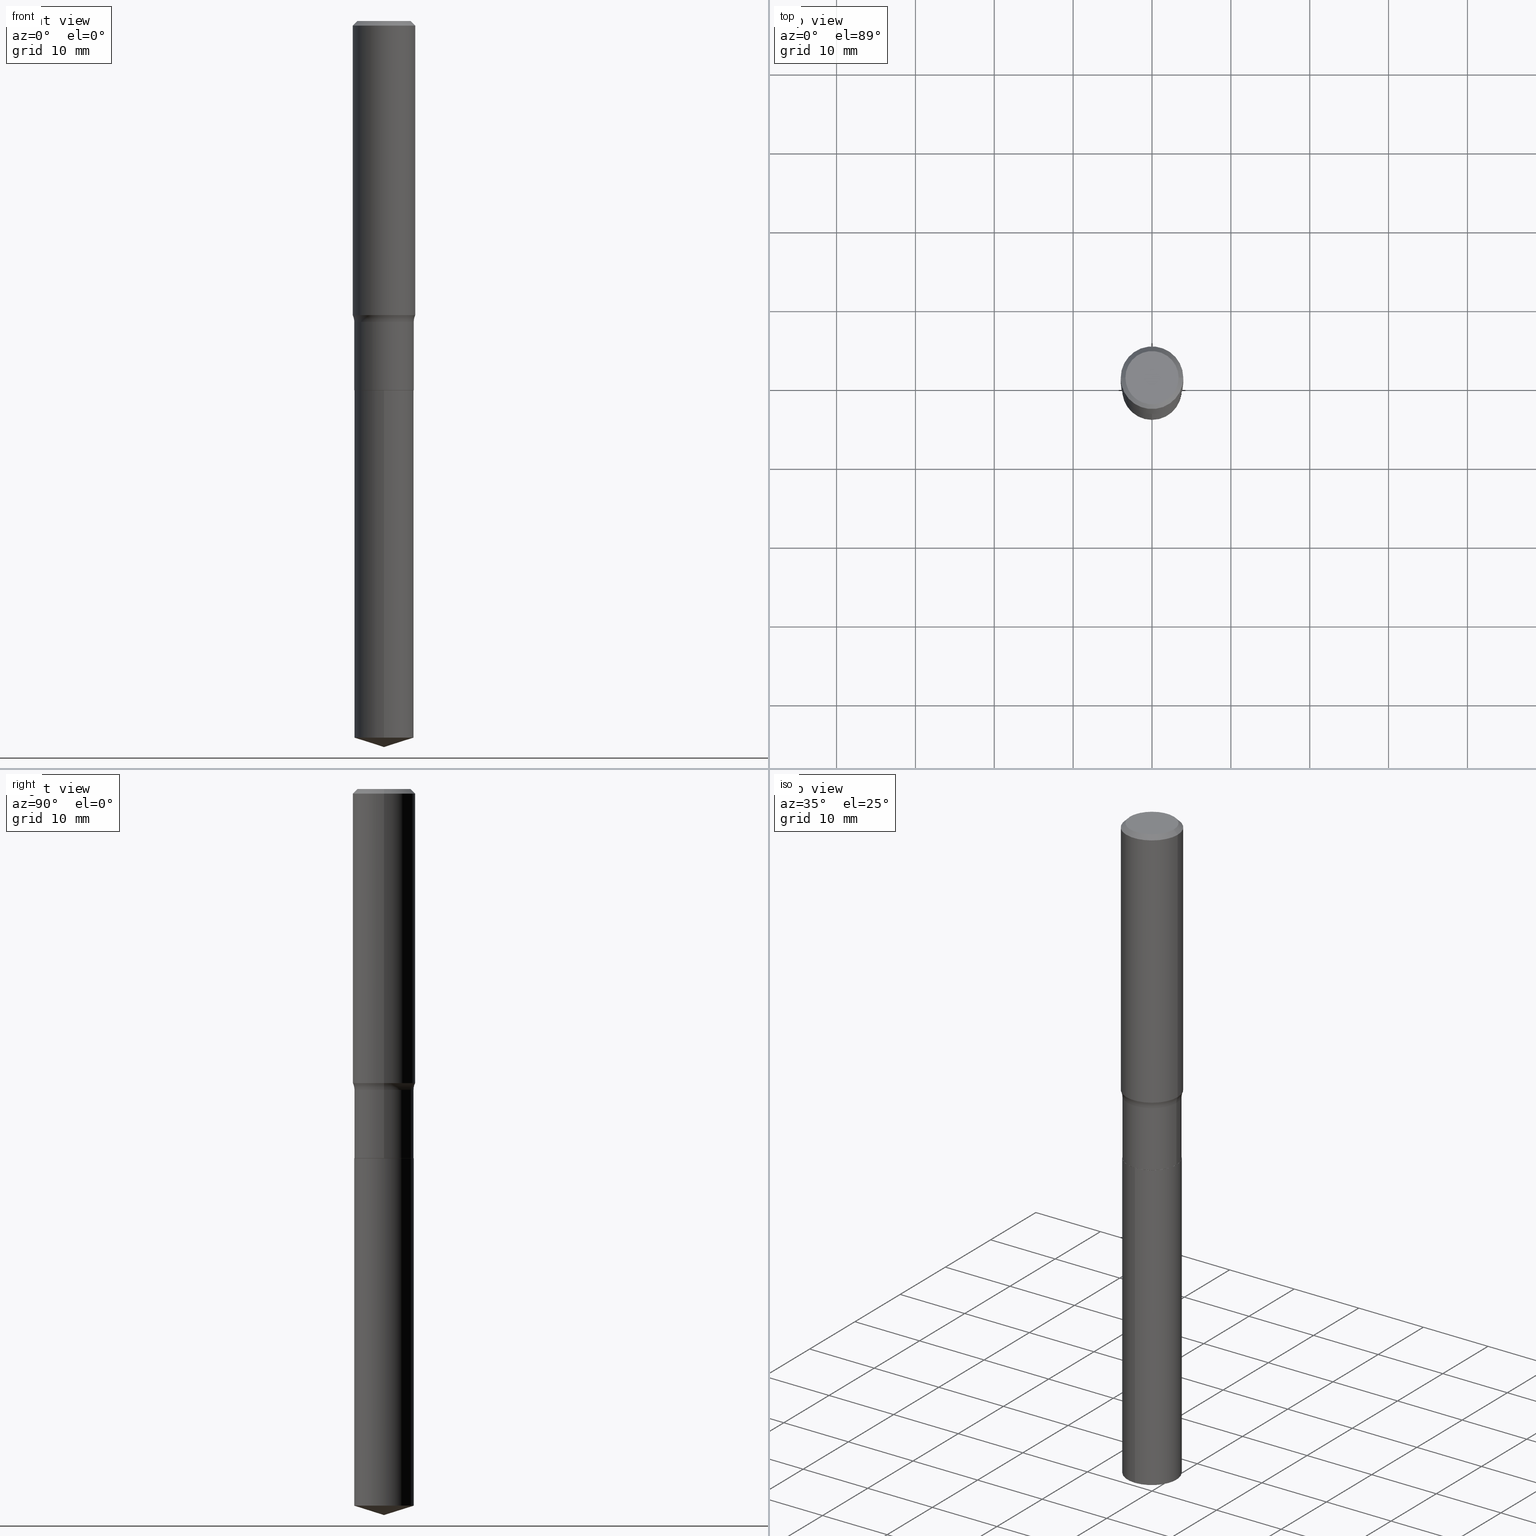
[diagram: canonical four-view strip — front | top / right | iso, engineering-drawing reading convention]
A machine part, canonical four-view strip (front | top / right | iso — engineering-drawing reading convention). The complete STEP part file that produces these views, byte-faithful:
ISO-10303-21;
HEADER;
FILE_DESCRIPTION (( 'STEP AP203' ),
    '1' );
FILE_NAME ('51516.STEP',
    '2024-04-19T12:56:14',
    ( '' ),
    ( '' ),
    'SwSTEP 2.0',
    'SolidWorks 2023',
    '' );
FILE_SCHEMA (( 'CONFIG_CONTROL_DESIGN' ));
ENDSEC;

DATA;
#1 = CARTESIAN_POINT ( 'NONE',  ( 0.1484499999999999431, -6.282222372980468867E-15, -1.502400000000000402 ) ) ;
#2 = ORIENTED_EDGE ( 'NONE', *, *, #483, .T. ) ;
#3 = AXIS2_PLACEMENT_3D ( 'NONE', #272, #83, #237 ) ;
#4 = APPROVAL ( #88, 'UNSPECIFIED' ) ;
#5 = AXIS2_PLACEMENT_3D ( 'NONE', #128, #175, #470 ) ;
#6 = LINE ( 'NONE', #428, #115 ) ;
#7 = ORIENTED_EDGE ( 'NONE', *, *, #492, .T. ) ;
#8 = FACE_OUTER_BOUND ( 'NONE', #254, .T. ) ;
#9 = EDGE_LOOP ( 'NONE', ( #488, #383, #31, #230 ) ) ;
#10 = PRODUCT_DEFINITION ( 'UNKNOWN', '', #342, #165 ) ;
#11 = ORIENTED_EDGE ( 'NONE', *, *, #37, .T. ) ;
#12 = CONICAL_SURFACE ( 'NONE', #291, 0.1479499999999999982, 0.7853981633975507526 ) ;
#13 = COORDINATED_UNIVERSAL_TIME_OFFSET ( 5, 0, .BEHIND. ) ;
#14 = CC_DESIGN_APPROVAL ( #119, ( #360 ) ) ;
#15 = DIRECTION ( 'NONE',  ( 1.000000000000000000, -6.982962677686266711E-15, 4.883557194083113462E-29 ) ) ;
#16 = PERSON_AND_ORGANIZATION ( #423, #197 ) ;
#17 = CARTESIAN_POINT ( 'NONE',  ( 5.731567514496448931E-31, -8.183159387913672688E-17, -0.02343750000000014225 ) ) ;
#18 = COORDINATED_UNIVERSAL_TIME_OFFSET ( 5, 0, .BEHIND. ) ;
#19 = EDGE_CURVE ( 'NONE', #152, #448, #75, .T. ) ;
#20 = AXIS2_PLACEMENT_3D ( 'NONE', #145, #449, #264 ) ;
#21 = CARTESIAN_POINT ( 'NONE',  ( -0.1479499999999999982, -5.386345315001924531E-15, -1.843800000000000106 ) ) ;
#22 = DIRECTION ( 'NONE',  ( -2.445468806185136597E-29, 3.491481338843145583E-15, 1.000000000000000000 ) ) ;
#23 = CYLINDRICAL_SURFACE ( 'NONE', #341, 0.1484499999999999986 ) ;
#24 = EDGE_CURVE ( 'NONE', #200, #450, #331, .T. ) ;
#25 = LINE ( 'NONE', #102, #387 ) ;
#26 = AXIS2_PLACEMENT_3D ( 'NONE', #335, #298, #221 ) ;
#27 = ORIENTED_EDGE ( 'NONE', *, *, #320, .T. ) ;
#28 = FACE_OUTER_BOUND ( 'NONE', #149, .T. ) ;
#29 = ORIENTED_EDGE ( 'NONE', *, *, #24, .T. ) ;
#30 = DIRECTION ( 'NONE',  ( -1.000000000000000000, 6.982962677686266711E-15, 0.000000000000000000 ) ) ;
#31 = ORIENTED_EDGE ( 'NONE', *, *, #308, .F. ) ;
#32 = EDGE_CURVE ( 'NONE', #39, #101, #420, .T. ) ;
#33 = CARTESIAN_POINT ( 'NONE',  ( -0.1562500000000000000, 1.009256324509342545E-15, -0.02343750000000014225 ) ) ;
#34 = AXIS2_PLACEMENT_3D ( 'NONE', #302, #182, #444 ) ;
#35 = ORIENTED_EDGE ( 'NONE', *, *, #105, .T. ) ;
#36 = ORIENTED_EDGE ( 'NONE', *, *, #371, .T. ) ;
#37 = EDGE_CURVE ( 'NONE', #110, #336, #281, .T. ) ;
#38 = PERSON_AND_ORGANIZATION ( #423, #197 ) ;
#39 = VERTEX_POINT ( 'NONE', #389 ) ;
#40 = LOCAL_TIME ( 8, 56, 14.00000000000000000, #18 ) ;
#41 = DIRECTION ( 'NONE',  ( 1.000000000000000000, -6.982962677686268288E-15, 0.000000000000000000 ) ) ;
#42 = FACE_OUTER_BOUND ( 'NONE', #223, .T. ) ;
#43 =( CONVERSION_BASED_UNIT ( 'INCH', #306 ) LENGTH_UNIT ( ) NAMED_UNIT ( #48 ) );
#44 = DIRECTION ( 'NONE',  ( 2.438088387897960049E-29, -3.491481338843145188E-15, -1.000000000000000000 ) ) ;
#45 = ADVANCED_FACE ( 'NONE', ( #42 ), #164, .F. ) ;
#46 = EDGE_LOOP ( 'NONE', ( #430, #7, #146, #348 ) ) ;
#47 = CLOSED_SHELL ( 'NONE', ( #258, #363, #190, #386, #224 ) ) ;
#48 = DIMENSIONAL_EXPONENTS ( 1.000000000000000000, 0.000000000000000000, 0.000000000000000000, 0.000000000000000000, 0.000000000000000000, 0.000000000000000000, 0.000000000000000000 ) ;
#49 = APPROVAL_ROLE ( '' ) ;
#50 = DIRECTION ( 'NONE',  ( 2.445681550450447072E-29, -3.491176676946568981E-15, -1.000000000000000000 ) ) ;
#51 = CARTESIAN_POINT ( 'NONE',  ( -0.1562500000000000833, 1.110223024625157132E-15, -7.685836078523293962E-30 ) ) ;
#52 = CC_DESIGN_DATE_AND_TIME_ASSIGNMENT ( #321, #477, ( #360 ) ) ;
#53 = PERSON_AND_ORGANIZATION_ROLE ( 'classification_officer' ) ;
#54 = DIRECTION ( 'NONE',  ( 1.000000000000000000, -6.982962677686268288E-15, 0.000000000000000000 ) ) ;
#55 = DATE_AND_TIME ( #440, #246 ) ;
#56 = AXIS2_PLACEMENT_3D ( 'NONE', #240, #314, #457 ) ;
#57 = VECTOR ( 'NONE', #229, 39.37007874015748143 ) ;
#58 = LINE ( 'NONE', #362, #124 ) ;
#59 = CIRCLE ( 'NONE', #166, 0.1328125000000000000 ) ;
#60 = APPROVAL ( #364, 'UNSPECIFIED' ) ;
#61 = CARTESIAN_POINT ( 'NONE',  ( 4.508955384844155553E-29, -6.437593292558992940E-15, -1.843800000000000106 ) ) ;
#62 = CARTESIAN_POINT ( 'NONE',  ( 1.054800691235956477E-15, 0.1484499999999935593, -1.843800000000000772 ) ) ;
#63 = VERTEX_POINT ( 'NONE', #317 ) ;
#64 = AXIS2_PLACEMENT_3D ( 'NONE', #199, #44, #357 ) ;
#65 = CARTESIAN_POINT ( 'NONE',  ( 0.000000000000000000, 0.000000000000000000, 0.000000000000000000 ) ) ;
#66 = CIRCLE ( 'NONE', #334, 0.1484499999999999986 ) ;
#67 = ORIENTED_EDGE ( 'NONE', *, *, #130, .F. ) ;
#68 = CYLINDRICAL_SURFACE ( 'NONE', #140, 0.1562500000000000833 ) ;
#69 = EDGE_LOOP ( 'NONE', ( #154, #417, #340, #158 ) ) ;
#70 = EDGE_CURVE ( 'NONE', #162, #222, #349, .T. ) ;
#71 = CARTESIAN_POINT ( 'NONE',  ( 4.508955384844155553E-29, -6.437593292558992940E-15, -1.843800000000000106 ) ) ;
#72 = APPLICATION_CONTEXT ( 'configuration controlled 3d designs of mechanical parts and assemblies' ) ;
#73 = VERTEX_POINT ( 'NONE', #201 ) ;
#74 = DIRECTION ( 'NONE',  ( -2.445681550450447352E-29, 3.491176676946568981E-15, 1.000000000000000000 ) ) ;
#75 = CIRCLE ( 'NONE', #56, 0.07800000000000002764 ) ;
#76 = ORIENTED_EDGE ( 'NONE', *, *, #112, .F. ) ;
#77 = CIRCLE ( 'NONE', #482, 0.1484499999999999986 ) ;
#78 = DIRECTION ( 'NONE',  ( 1.000000000000000000, -6.982962677686268288E-15, 4.876286914311434227E-29 ) ) ;
#79 = EDGE_LOOP ( 'NONE', ( #11, #114, #422, #299 ) ) ;
#80 = APPLICATION_CONTEXT ( 'configuration controlled 3d designs of mechanical parts and assemblies' ) ;
#81 = ORIENTED_EDGE ( 'NONE', *, *, #308, .T. ) ;
#82 = DIRECTION ( 'NONE',  ( -2.445681550450447632E-29, 3.491176676946568981E-15, 1.000000000000000000 ) ) ;
#83 = DIRECTION ( 'NONE',  ( -2.445468806185136597E-29, 3.491481338843145583E-15, 1.000000000000000000 ) ) ;
#84 = AXIS2_PLACEMENT_3D ( 'NONE', #345, #356, #191 ) ;
#85 = VERTEX_POINT ( 'NONE', #1 ) ;
#86 = EDGE_CURVE ( 'NONE', #256, #101, #365, .T. ) ;
#87 = DIRECTION ( 'NONE',  ( 0.7071067811865453523, -7.319954787623248157E-15, -0.7071067811865496822 ) ) ;
#88 = APPROVAL_STATUS ( 'not_yet_approved' ) ;
#89 = FACE_OUTER_BOUND ( 'NONE', #228, .T. ) ;
#90 = VECTOR ( 'NONE', #116, 39.37007874015748143 ) ;
#91 = PERSON_AND_ORGANIZATION_ROLE ( 'creator' ) ;
#92 = CC_DESIGN_DATE_AND_TIME_ASSIGNMENT ( #137, #129, ( #10 ) ) ;
#93 = CARTESIAN_POINT ( 'NONE',  ( 4.508955384844155553E-29, -6.437593292558992940E-15, -1.843800000000000106 ) ) ;
#94 = CALENDAR_DATE ( 2024, 19, 4 ) ;
#95 = FACE_OUTER_BOUND ( 'NONE', #106, .T. ) ;
#96 = DIRECTION ( 'NONE',  ( -2.445468806185136877E-29, 3.491481338843145188E-15, 1.000000000000000000 ) ) ;
#97 = CIRCLE ( 'NONE', #226, 0.1484499999999999431 ) ;
#98 = CARTESIAN_POINT ( 'NONE',  ( -8.742147185207805018E-28, 1.247918234776515396E-13, 35.74507874015748143 ) ) ;
#99 = CC_DESIGN_APPROVAL ( #4, ( #342 ) ) ;
#100 = DIRECTION ( 'NONE',  ( 1.000000000000000000, -6.982962677686266711E-15, 4.883557194083113462E-29 ) ) ;
#101 = VERTEX_POINT ( 'NONE', #437 ) ;
#102 = CARTESIAN_POINT ( 'NONE',  ( -1.036620809502480931E-15, -0.1484500000000064379, -1.843799999999999661 ) ) ;
#103 = CARTESIAN_POINT ( 'NONE',  ( 4.508955384844155553E-29, -6.437593292558992940E-15, -1.843800000000000106 ) ) ;
#104 = AXIS2_PLACEMENT_3D ( 'NONE', #260, #107, #411 ) ;
#105 = EDGE_CURVE ( 'NONE', #101, #217, #473, .T. ) ;
#106 = EDGE_LOOP ( 'NONE', ( #332, #432, #35, #126 ) ) ;
#107 = DIRECTION ( 'NONE',  ( -2.445468806185136597E-29, 3.491481338843145583E-15, 1.000000000000000000 ) ) ;
#108 = EDGE_LOOP ( 'NONE', ( #313, #185, #195, #76 ) ) ;
#109 = FACE_OUTER_BOUND ( 'NONE', #232, .T. ) ;
#110 = VERTEX_POINT ( 'NONE', #367 ) ;
#111 = CC_DESIGN_PERSON_AND_ORGANIZATION_ASSIGNMENT ( #173, #438, ( #342 ) ) ;
#112 = EDGE_CURVE ( 'NONE', #352, #63, #300, .T. ) ;
#113 = AXIS2_PLACEMENT_3D ( 'NONE', #425, #463, #355 ) ;
#114 = ORIENTED_EDGE ( 'NONE', *, *, #161, .T. ) ;
#115 = VECTOR ( 'NONE', #82, 39.37007874015748143 ) ;
#116 = DIRECTION ( 'NONE',  ( 0.7071067811866199593, -2.468850131083015945E-15, 0.7071067811864750752 ) ) ;
#117 = ORIENTED_EDGE ( 'NONE', *, *, #123, .T. ) ;
#118 = DIRECTION ( 'NONE',  ( 1.000000000000000000, -6.982962677686266711E-15, 4.876176775795935232E-29 ) ) ;
#119 = APPROVAL ( #433, 'UNSPECIFIED' ) ;
#120 = CARTESIAN_POINT ( 'NONE',  ( 0.1562500000000000000, -1.153784406030938435E-15, -0.02343750000000014225 ) ) ;
#121 = DIRECTION ( 'NONE',  ( 1.000000000000000000, -6.982962677686268288E-15, 0.000000000000000000 ) ) ;
#122 = ORIENTED_EDGE ( 'NONE', *, *, #390, .T. ) ;
#123 = EDGE_CURVE ( 'NONE', #152, #217, #170, .T. ) ;
#124 = VECTOR ( 'NONE', #248, 39.37007874015748143 ) ;
#125 = DIRECTION ( 'NONE',  ( -2.445468806185136597E-29, 3.491481338843145583E-15, 1.000000000000000000 ) ) ;
#126 = ORIENTED_EDGE ( 'NONE', *, *, #371, .F. ) ;
#127 = SHAPE_DEFINITION_REPRESENTATION ( #379, #399 ) ;
#128 = CARTESIAN_POINT ( 'NONE',  ( 4.508955384844155553E-29, -6.437593292558992940E-15, -1.843800000000000106 ) ) ;
#129 = DATE_TIME_ROLE ( 'creation_date' ) ;
#130 = EDGE_CURVE ( 'NONE', #415, #162, #58, .T. ) ;
#131 = FACE_OUTER_BOUND ( 'NONE', #276, .T. ) ;
#132 = AXIS2_PLACEMENT_3D ( 'NONE', #253, #372, #370 ) ;
#133 = PERSON_AND_ORGANIZATION ( #423, #197 ) ;
#134 = DIRECTION ( 'NONE',  ( 6.982962677686265922E-15, 1.000000000000000000, -3.491176676946568981E-15 ) ) ;
#135 = APPROVAL_ROLE ( '' ) ;
#136 = DIRECTION ( 'NONE',  ( -2.445468806185136597E-29, 3.491481338843145583E-15, 1.000000000000000000 ) ) ;
#137 = DATE_AND_TIME ( #284, #40 ) ;
#138 = DIRECTION ( 'NONE',  ( -6.982962677686265133E-15, -1.000000000000000000, 3.680495781292372402E-15 ) ) ;
#139 = ADVANCED_FACE ( 'NONE', ( #169 ), #368, .F. ) ;
#140 = AXIS2_PLACEMENT_3D ( 'NONE', #65, #180, #304 ) ;
#141 = AXIS2_PLACEMENT_3D ( 'NONE', #475, #472, #15 ) ;
#142 = CARTESIAN_POINT ( 'NONE',  ( -0.1484499999999999709, 1.054800691235868519E-15, -7.302159141483407353E-30 ) ) ;
#143 = LOCAL_TIME ( 8, 56, 14.00000000000000000, #394 ) ;
#144 = ORIENTED_EDGE ( 'NONE', *, *, #130, .T. ) ;
#145 = CARTESIAN_POINT ( 'NONE',  ( 4.508955384844155553E-29, -6.437593292558992940E-15, -1.843800000000000106 ) ) ;
#146 = ORIENTED_EDGE ( 'NONE', *, *, #86, .T. ) ;
#147 = EDGE_CURVE ( 'NONE', #256, #152, #151, .T. ) ;
#148 = FACE_OUTER_BOUND ( 'NONE', #9, .T. ) ;
#149 = EDGE_LOOP ( 'NONE', ( #262, #122, #376, #218 ) ) ;
#150 = FACE_OUTER_BOUND ( 'NONE', #385, .T. ) ;
#151 = CIRCLE ( 'NONE', #251, 0.1562500000000001665 ) ;
#152 = VERTEX_POINT ( 'NONE', #288 ) ;
#153 = CARTESIAN_POINT ( 'NONE',  ( 0.1562500000000001665, -6.217981170176073659E-15, -1.468400588240382554 ) ) ;
#154 = ORIENTED_EDGE ( 'NONE', *, *, #19, .F. ) ;
#155 = CARTESIAN_POINT ( 'NONE',  ( -7.955031918821654702E-47, 1.135767727816384474E-32, 3.252968060235159383E-18 ) ) ;
#156 = ORIENTED_EDGE ( 'NONE', *, *, #320, .F. ) ;
#157 = CARTESIAN_POINT ( 'NONE',  ( 5.731567514496448931E-31, -8.183159387913672688E-17, -0.02343750000000014225 ) ) ;
#158 = ORIENTED_EDGE ( 'NONE', *, *, #346, .T. ) ;
#159 = APPLICATION_PROTOCOL_DEFINITION ( 'international standard', 'config_control_design', 1994, #80 ) ;
#160 = ORIENTED_EDGE ( 'NONE', *, *, #32, .F. ) ;
#161 = EDGE_CURVE ( 'NONE', #336, #200, #289, .T. ) ;
#162 = VERTEX_POINT ( 'NONE', #369 ) ;
#163 = DIRECTION ( 'NONE',  ( -2.445468806185136597E-29, 3.491481338843145583E-15, 1.000000000000000000 ) ) ;
#164 = PLANE ( 'NONE',  #64 ) ;
#165 = DESIGN_CONTEXT ( 'detailed design', #80, 'design' ) ;
#166 = AXIS2_PLACEMENT_3D ( 'NONE', #155, #125, #78 ) ;
#167 = DIRECTION ( 'NONE',  ( -2.445681550450447352E-29, 3.491176676946568981E-15, 1.000000000000000000 ) ) ;
#168 = EDGE_CURVE ( 'NONE', #448, #85, #97, .T. ) ;
#169 = FACE_OUTER_BOUND ( 'NONE', #69, .T. ) ;
#170 = LINE ( 'NONE', #51, #202 ) ;
#171 = AXIS2_PLACEMENT_3D ( 'NONE', #413, #330, #220 ) ;
#172 = CC_DESIGN_PERSON_AND_ORGANIZATION_ASSIGNMENT ( #471, #91, ( #10 ) ) ;
#173 = PERSON_AND_ORGANIZATION ( #423, #197 ) ;
#174 = DIRECTION ( 'NONE',  ( -2.445468806185136597E-29, 3.491481338843145583E-15, 1.000000000000000000 ) ) ;
#175 = DIRECTION ( 'NONE',  ( -2.438088387897960049E-29, 3.491481338843145188E-15, 1.000000000000000000 ) ) ;
#176 = EDGE_CURVE ( 'NONE', #73, #39, #350, .T. ) ;
#177 = DIRECTION ( 'NONE',  ( -6.982962677686265133E-15, -1.000000000000000000, 3.680495781292372402E-15 ) ) ;
#178 = CIRCLE ( 'NONE', #458, 0.1484499999999999431 ) ;
#179 = APPROVAL_PERSON_ORGANIZATION ( #133, #4, #49 ) ;
#180 = DIRECTION ( 'NONE',  ( -2.445468806185136597E-29, 3.491481338843145583E-15, 1.000000000000000000 ) ) ;
#181 = EDGE_LOOP ( 'NONE', ( #274, #27, #460, #464 ) ) ;
#182 = DIRECTION ( 'NONE',  ( -2.445468806185136597E-29, 3.491481338843145583E-15, 1.000000000000000000 ) ) ;
#183 = ORIENTED_EDGE ( 'NONE', *, *, #338, .F. ) ;
#184 = CYLINDRICAL_SURFACE ( 'NONE', #132, 0.1484499999999999986 ) ;
#185 = ORIENTED_EDGE ( 'NONE', *, *, #469, .T. ) ;
#186 = CC_DESIGN_PERSON_AND_ORGANIZATION_ASSIGNMENT ( #208, #53, ( #360 ) ) ;
#187 = DIRECTION ( 'NONE',  ( -2.445468806185136597E-29, 3.491481338843145583E-15, 1.000000000000000000 ) ) ;
#188 = VECTOR ( 'NONE', #278, 39.37007874015748143 ) ;
#189 = LOCAL_TIME ( 8, 56, 14.00000000000000000, #13 ) ;
#190 = ADVANCED_FACE ( 'NONE', ( #131 ), #474, .T. ) ;
#191 = DIRECTION ( 'NONE',  ( 1.000000000000000000, 0.000000000000000000, 0.000000000000000000 ) ) ;
#192 = ORIENTED_EDGE ( 'NONE', *, *, #37, .F. ) ;
#193 = PERSON_AND_ORGANIZATION_ROLE ( 'design_owner' ) ;
#194 = VECTOR ( 'NONE', #206, 39.37007874015748143 ) ;
#195 = ORIENTED_EDGE ( 'NONE', *, *, #277, .T. ) ;
#196 = AXIS2_PLACEMENT_3D ( 'NONE', #478, #136, #441 ) ;
#197 = ORGANIZATION ( 'UNSPECIFIED', 'UNSPECIFIED', '' ) ;
#198 = ADVANCED_FACE ( 'NONE', ( #209 ), #324, .F. ) ;
#199 = CARTESIAN_POINT ( 'NONE',  ( -3.977515959410827351E-47, 5.678838639081922371E-33, 1.626484030117579692E-18 ) ) ;
#200 = VERTEX_POINT ( 'NONE', #329 ) ;
#201 = CARTESIAN_POINT ( 'NONE',  ( -0.1328125000000000000, 9.683405275697749214E-16, 3.252968060228530332E-18 ) ) ;
#202 = VECTOR ( 'NONE', #96, 39.37007874015748143 ) ;
#203 =( GEOMETRIC_REPRESENTATION_CONTEXT ( 3 ) GLOBAL_UNCERTAINTY_ASSIGNED_CONTEXT ( ( #261 ) ) GLOBAL_UNIT_ASSIGNED_CONTEXT ( ( #43, #354, #421 ) ) REPRESENTATION_CONTEXT ( 'NONE', 'WORKASPACE' ) );
#204 = DATE_AND_TIME ( #94, #143 ) ;
#205 = DIRECTION ( 'NONE',  ( -2.445468806185136597E-29, 3.491481338843145583E-15, 1.000000000000000000 ) ) ;
#206 = DIRECTION ( 'NONE',  ( -2.445468806185136877E-29, 3.491481338843145188E-15, 1.000000000000000000 ) ) ;
#207 = CC_DESIGN_PERSON_AND_ORGANIZATION_ASSIGNMENT ( #326, #392, ( #342 ) ) ;
#208 = PERSON_AND_ORGANIZATION ( #423, #197 ) ;
#209 = FACE_OUTER_BOUND ( 'NONE', #267, .T. ) ;
#210 = AXIS2_PLACEMENT_3D ( 'NONE', #416, #339, #100 ) ;
#211 = CIRCLE ( 'NONE', #310, 0.1562500000000000000 ) ;
#212 = APPROVAL_DATE_TIME ( #55, #4 ) ;
#213 = EDGE_CURVE ( 'NONE', #450, #85, #480, .T. ) ;
#214 = DIRECTION ( 'NONE',  ( 1.000000000000000000, -6.982962677686264344E-15, 0.000000000000000000 ) ) ;
#215 = CYLINDRICAL_SURFACE ( 'NONE', #34, 0.1484499999999999709 ) ;
#216 = LINE ( 'NONE', #33, #238 ) ;
#217 = VERTEX_POINT ( 'NONE', #252 ) ;
#218 = ORIENTED_EDGE ( 'NONE', *, *, #213, .F. ) ;
#219 = AXIS2_PLACEMENT_3D ( 'NONE', #456, #239, #118 ) ;
#220 = DIRECTION ( 'NONE',  ( -6.982962677686265133E-15, -1.000000000000000000, 3.680495781292372402E-15 ) ) ;
#221 = DIRECTION ( 'NONE',  ( -6.982962677686265922E-15, -1.000000000000000000, 3.500519750498734014E-15 ) ) ;
#222 = VERTEX_POINT ( 'NONE', #434 ) ;
#223 = EDGE_LOOP ( 'NONE', ( #265, #407 ) ) ;
#224 = ADVANCED_FACE ( 'NONE', ( #89 ), #398, .F. ) ;
#225 = CARTESIAN_POINT ( 'NONE',  ( 3.590927833525760442E-29, -5.126893251787593696E-15, -1.468400588240382554 ) ) ;
#226 = AXIS2_PLACEMENT_3D ( 'NONE', #442, #174, #214 ) ;
#227 = CC_DESIGN_APPROVAL ( #60, ( #10 ) ) ;
#228 = EDGE_LOOP ( 'NONE', ( #81, #410 ) ) ;
#229 = DIRECTION ( 'NONE',  ( -2.445468806185136877E-29, 3.491481338843145188E-15, 1.000000000000000000 ) ) ;
#230 = ORIENTED_EDGE ( 'NONE', *, *, #277, .F. ) ;
#231 = CARTESIAN_POINT ( 'NONE',  ( 8.865595620382872947E-29, -1.265551545393131300E-14, -3.625000000000000444 ) ) ;
#232 = EDGE_LOOP ( 'NONE', ( #270, #117, #315, #414 ) ) ;
#233 = ADVANCED_FACE ( 'NONE', ( #405 ), #12, .T. ) ;
#234 = EDGE_CURVE ( 'NONE', #450, #200, #77, .T. ) ;
#235 = CYLINDRICAL_SURFACE ( 'NONE', #219, 0.1562500000000000833 ) ;
#236 = AXIS2_PLACEMENT_3D ( 'NONE', #17, #402, #403 ) ;
#237 = DIRECTION ( 'NONE',  ( 1.000000000000000000, -6.982962677686265133E-15, 0.000000000000000000 ) ) ;
#238 = VECTOR ( 'NONE', #491, 39.37007874015748143 ) ;
#239 = DIRECTION ( 'NONE',  ( -2.445468806185136597E-29, 3.491481338843145583E-15, 1.000000000000000000 ) ) ;
#240 = CARTESIAN_POINT ( 'NONE',  ( -0.2264499999999999569, -3.636577538349196604E-15, -1.502400000000000402 ) ) ;
#241 = CALENDAR_DATE ( 2024, 19, 4 ) ;
#242 = DIRECTION ( 'NONE',  ( -6.982962677686265133E-15, -1.000000000000000000, 3.680495781292372402E-15 ) ) ;
#243 = COORDINATED_UNIVERSAL_TIME_OFFSET ( 5, 0, .BEHIND. ) ;
#244 = CARTESIAN_POINT ( 'NONE',  ( 3.590927833525760442E-29, -5.126893251787593696E-15, -1.468400588240382554 ) ) ;
#245 = CONICAL_SURFACE ( 'NONE', #26, 124.8659371009140102, 1.265363707695889239 ) ;
#246 = LOCAL_TIME ( 8, 56, 14.00000000000000000, #243 ) ;
#247 = CARTESIAN_POINT ( 'NONE',  ( 4.507732650441062752E-29, -6.435847551889571436E-15, -1.843300000000000161 ) ) ;
#248 = DIRECTION ( 'NONE',  ( -6.659769872151627355E-15, -0.9537169507482260444, 0.3007057995042761722 ) ) ;
#249 = ADVANCED_FACE ( 'NONE', ( #95 ), #318, .T. ) ;
#250 = DIRECTION ( 'NONE',  ( -6.982962677686265922E-15, -1.000000000000000000, 3.500519750498734014E-15 ) ) ;
#251 = AXIS2_PLACEMENT_3D ( 'NONE', #244, #22, #54 ) ;
#252 = CARTESIAN_POINT ( 'NONE',  ( -0.1562500000000000000, -1.494139398208207734E-15, -0.02343750000000014225 ) ) ;
#253 = CARTESIAN_POINT ( 'NONE',  ( 4.508955384844155553E-29, -6.437593292558992940E-15, -1.843800000000000106 ) ) ;
#254 = EDGE_LOOP ( 'NONE', ( #160, #259, #36, #2 ) ) ;
#255 = DIRECTION ( 'NONE',  ( 1.000000000000000000, -6.982962677686264344E-15, 0.000000000000000000 ) ) ;
#256 = VERTEX_POINT ( 'NONE', #153 ) ;
#257 = CYLINDRICAL_SURFACE ( 'NONE', #104, 0.1484499999999999709 ) ;
#258 = ADVANCED_FACE ( 'NONE', ( #148 ), #184, .T. ) ;
#259 = ORIENTED_EDGE ( 'NONE', *, *, #176, .F. ) ;
#260 = CARTESIAN_POINT ( 'NONE',  ( 0.000000000000000000, 0.000000000000000000, 0.000000000000000000 ) ) ;
#261 = UNCERTAINTY_MEASURE_WITH_UNIT (LENGTH_MEASURE( 1.000000000000000082E-05 ), #43, 'distance_accuracy_value', 'NONE');
#262 = ORIENTED_EDGE ( 'NONE', *, *, #234, .T. ) ;
#263 = ADVANCED_FACE ( 'NONE', ( #452 ), #325, .F. ) ;
#264 = DIRECTION ( 'NONE',  ( 1.000000000000000000, -6.982962677686265133E-15, 0.000000000000000000 ) ) ;
#265 = ORIENTED_EDGE ( 'NONE', *, *, #176, .T. ) ;
#266 = CIRCLE ( 'NONE', #333, 0.1479499999999999982 ) ;
#267 = EDGE_LOOP ( 'NONE', ( #192, #156 ) ) ;
#268 = ADVANCED_FACE ( 'NONE', ( #28 ), #257, .T. ) ;
#269 = PRODUCT ( '51516', '51516', '', ( #459 ) ) ;
#270 = ORIENTED_EDGE ( 'NONE', *, *, #147, .T. ) ;
#271 = FACE_OUTER_BOUND ( 'NONE', #46, .T. ) ;
#272 = CARTESIAN_POINT ( 'NONE',  ( 4.508955384844155553E-29, -6.437593292558992940E-15, -1.843800000000000106 ) ) ;
#273 = CARTESIAN_POINT ( 'NONE',  ( 0.1484499999999999986, -7.472468361392097332E-15, -1.843300000000000161 ) ) ;
#274 = ORIENTED_EDGE ( 'NONE', *, *, #161, .F. ) ;
#275 = CARTESIAN_POINT ( 'NONE',  ( 8.750730534548190611E-29, -1.249266880669155655E-14, -3.578193894790915319 ) ) ;
#276 = EDGE_LOOP ( 'NONE', ( #183, #144, #294 ) ) ;
#277 = EDGE_CURVE ( 'NONE', #162, #63, #25, .T. ) ;
#278 = DIRECTION ( 'NONE',  ( -2.445468806185136877E-29, 3.491481338843145188E-15, 1.000000000000000000 ) ) ;
#279 = COORDINATED_UNIVERSAL_TIME_OFFSET ( 5, 0, .BEHIND. ) ;
#280 = CARTESIAN_POINT ( 'NONE',  ( 0.1484499999999999709, -1.036620809502526093E-15, 7.238684423669065009E-30 ) ) ;
#281 = CIRCLE ( 'NONE', #3, 0.1479499999999999982 ) ;
#282 = AXIS2_PLACEMENT_3D ( 'NONE', #293, #408, #30 ) ;
#283 = AXIS2_PLACEMENT_3D ( 'NONE', #225, #312, #41 ) ;
#284 = CALENDAR_DATE ( 2024, 19, 4 ) ;
#285 = DIRECTION ( 'NONE',  ( -2.445468806185136597E-29, 3.491481338843145583E-15, 1.000000000000000000 ) ) ;
#286 = ADVANCED_FACE ( 'NONE', ( #150 ), #215, .T. ) ;
#287 = SECURITY_CLASSIFICATION_LEVEL ( 'unclassified' ) ;
#288 = CARTESIAN_POINT ( 'NONE',  ( -0.1562500000000001665, -4.016670227162435578E-15, -1.468400588240382554 ) ) ;
#289 = LINE ( 'NONE', #21, #301 ) ;
#290 = CLOSED_SHELL ( 'NONE', ( #233, #249, #303, #263, #268, #286, #139, #426, #479, #45, #198, #377 ) ) ;
#291 = AXIS2_PLACEMENT_3D ( 'NONE', #61, #205, #358 ) ;
#292 = CC_DESIGN_SECURITY_CLASSIFICATION ( #360, ( #342 ) ) ;
#293 = CARTESIAN_POINT ( 'NONE',  ( 5.731567514496448931E-31, -8.183159387913672688E-17, -0.02343750000000014225 ) ) ;
#294 = ORIENTED_EDGE ( 'NONE', *, *, #469, .F. ) ;
#295 = DIRECTION ( 'NONE',  ( -2.445681550450447632E-29, 3.491176676946568981E-15, 1.000000000000000000 ) ) ;
#296 = ORIENTED_EDGE ( 'NONE', *, *, #70, .F. ) ;
#297 = CC_DESIGN_PERSON_AND_ORGANIZATION_ASSIGNMENT ( #38, #193, ( #269 ) ) ;
#298 = DIRECTION ( 'NONE',  ( -2.445681550450447352E-29, 3.491176676946568981E-15, 1.000000000000000000 ) ) ;
#299 = ORIENTED_EDGE ( 'NONE', *, *, #404, .F. ) ;
#300 = CIRCLE ( 'NONE', #418, 0.1484499999999999986 ) ;
#301 = VECTOR ( 'NONE', #323, 39.37007874015748143 ) ;
#302 = CARTESIAN_POINT ( 'NONE',  ( 0.000000000000000000, 0.000000000000000000, 0.000000000000000000 ) ) ;
#303 = ADVANCED_FACE ( 'NONE', ( #109 ), #68, .T. ) ;
#304 = DIRECTION ( 'NONE',  ( 1.000000000000000000, -6.982962677686266711E-15, 4.876176775795935232E-29 ) ) ;
#305 = ORIENTED_EDGE ( 'NONE', *, *, #213, .T. ) ;
#306 = LENGTH_MEASURE_WITH_UNIT ( LENGTH_MEASURE( 0.02539999999999999897 ), #462 );
#307 = ORIENTED_EDGE ( 'NONE', *, *, #427, .F. ) ;
#308 = EDGE_CURVE ( 'NONE', #63, #352, #490, .T. ) ;
#309 = DIRECTION ( 'NONE',  ( -1.000000000000000000, 6.982962677686266711E-15, 0.000000000000000000 ) ) ;
#310 = AXIS2_PLACEMENT_3D ( 'NONE', #419, #163, #391 ) ;
#311 = ORIENTED_EDGE ( 'NONE', *, *, #168, .F. ) ;
#312 = DIRECTION ( 'NONE',  ( -2.445468806185136597E-29, 3.491481338843145583E-15, 1.000000000000000000 ) ) ;
#313 = ORIENTED_EDGE ( 'NONE', *, *, #461, .F. ) ;
#314 = DIRECTION ( 'NONE',  ( 7.105427357601001859E-15, 1.000000000000000000, -3.491481338843145583E-15 ) ) ;
#315 = ORIENTED_EDGE ( 'NONE', *, *, #105, .F. ) ;
#316 = APPLICATION_PROTOCOL_DEFINITION ( 'international standard', 'config_control_design', 1994, #72 ) ;
#317 = CARTESIAN_POINT ( 'NONE',  ( -1.036620809502480931E-15, -0.1484500000000064379, -1.843799999999999661 ) ) ;
#318 = CONICAL_SURFACE ( 'NONE', #282, 0.1562500000000000000, 0.7853981633974452814 ) ;
#319 = AXIS2_PLACEMENT_3D ( 'NONE', #157, #347, #309 ) ;
#320 = EDGE_CURVE ( 'NONE', #336, #110, #266, .T. ) ;
#321 = DATE_AND_TIME ( #435, #381 ) ;
#322 = CARTESIAN_POINT ( 'NONE',  ( 4.508955384844155553E-29, -6.437593292558992940E-15, -1.843800000000000106 ) ) ;
#323 = DIRECTION ( 'NONE',  ( -0.7071067811866199593, 7.493145998870616062E-15, 0.7071067811864750752 ) ) ;
#324 = PLANE ( 'NONE',  #5 ) ;
#325 = TOROIDAL_SURFACE ( 'NONE', #210, 0.2264499999999999569, 0.07800000000000002764 ) ;
#326 = PERSON_AND_ORGANIZATION ( #423, #197 ) ;
#327 = CARTESIAN_POINT ( 'NONE',  ( 0.1562500000000000833, -1.091087918388479765E-15, 7.619026212181153180E-30 ) ) ;
#328 = APPROVAL_DATE_TIME ( #204, #119 ) ;
#329 = CARTESIAN_POINT ( 'NONE',  ( -0.1484499999999999986, -4.785923866447888291E-15, -1.843300000000000161 ) ) ;
#330 = DIRECTION ( 'NONE',  ( -2.445681550450447352E-29, 3.491176676946568981E-15, 1.000000000000000000 ) ) ;
#331 = CIRCLE ( 'NONE', #113, 0.1484499999999999986 ) ;
#332 = ORIENTED_EDGE ( 'NONE', *, *, #455, .F. ) ;
#333 = AXIS2_PLACEMENT_3D ( 'NONE', #71, #187, #343 ) ;
#334 = AXIS2_PLACEMENT_3D ( 'NONE', #275, #74, #388 ) ;
#335 = CARTESIAN_POINT ( 'NONE',  ( -8.742147185207805018E-28, 1.247918234776515396E-13, 35.74507874015748143 ) ) ;
#336 = VERTEX_POINT ( 'NONE', #489 ) ;
#337 = FACE_OUTER_BOUND ( 'NONE', #412, .T. ) ;
#338 = EDGE_CURVE ( 'NONE', #415, #222, #375, .T. ) ;
#339 = DIRECTION ( 'NONE',  ( -2.445468806185136597E-29, 3.491481338843145583E-15, 1.000000000000000000 ) ) ;
#340 = ORIENTED_EDGE ( 'NONE', *, *, #427, .T. ) ;
#341 = AXIS2_PLACEMENT_3D ( 'NONE', #103, #378, #177 ) ;
#342 = PRODUCT_DEFINITION_FORMATION_WITH_SPECIFIED_SOURCE ( 'ANY', '', #269, .NOT_KNOWN. ) ;
#343 = DIRECTION ( 'NONE',  ( 1.000000000000000000, -6.982962677686265133E-15, 0.000000000000000000 ) ) ;
#344 = ORIENTED_EDGE ( 'NONE', *, *, #390, .F. ) ;
#345 = CARTESIAN_POINT ( 'NONE',  ( 0.000000000000000000, 0.000000000000000000, 0.000000000000000000 ) ) ;
#346 = EDGE_CURVE ( 'NONE', #85, #448, #178, .T. ) ;
#347 = DIRECTION ( 'NONE',  ( 2.445468806185136597E-29, -3.491481338843145583E-15, -1.000000000000000000 ) ) ;
#348 = ORIENTED_EDGE ( 'NONE', *, *, #483, .F. ) ;
#349 = CIRCLE ( 'NONE', #409, 0.1484499999999999986 ) ;
#350 = CIRCLE ( 'NONE', #196, 0.1328125000000000000 ) ;
#351 = LINE ( 'NONE', #382, #90 ) ;
#352 = VERTEX_POINT ( 'NONE', #62 ) ;
#353 = ORIENTED_EDGE ( 'NONE', *, *, #19, .T. ) ;
#354 =( NAMED_UNIT ( * ) PLANE_ANGLE_UNIT ( ) SI_UNIT ( $, .RADIAN. ) );
#355 = DIRECTION ( 'NONE',  ( 1.000000000000000000, -6.982962677686268288E-15, 0.000000000000000000 ) ) ;
#356 = DIRECTION ( 'NONE',  ( 0.000000000000000000, 0.000000000000000000, 1.000000000000000000 ) ) ;
#357 = DIRECTION ( 'NONE',  ( -1.000000000000000000, 6.982962677686265922E-15, -4.876176775795935793E-29 ) ) ;
#358 = DIRECTION ( 'NONE',  ( 1.000000000000000000, -6.982962677686265133E-15, 0.000000000000000000 ) ) ;
#359 = AXIS2_PLACEMENT_3D ( 'NONE', #93, #50, #134 ) ;
#360 = SECURITY_CLASSIFICATION ( '', '', #287 ) ;
#361 = PERSON_AND_ORGANIZATION ( #423, #197 ) ;
#362 = CARTESIAN_POINT ( 'NONE',  ( 8.864811104630111118E-29, -1.265663892514113027E-14, -3.625000000000000444 ) ) ;
#363 = ADVANCED_FACE ( 'NONE', ( #337 ), #245, .T. ) ;
#364 = APPROVAL_STATUS ( 'not_yet_approved' ) ;
#365 = LINE ( 'NONE', #327, #194 ) ;
#366 = DATE_AND_TIME ( #241, #189 ) ;
#367 = CARTESIAN_POINT ( 'NONE',  ( 0.1479499999999999982, -7.470722620722675040E-15, -1.843800000000000106 ) ) ;
#368 = TOROIDAL_SURFACE ( 'NONE', #141, 0.2264499999999999569, 0.07800000000000002764 ) ;
#369 = CARTESIAN_POINT ( 'NONE',  ( -1.036620809502438924E-15, -0.1484500000000125441, -3.578193894790914875 ) ) ;
#370 = DIRECTION ( 'NONE',  ( -6.982962677686265133E-15, -1.000000000000000000, 3.680495781292372402E-15 ) ) ;
#371 = EDGE_CURVE ( 'NONE', #73, #217, #216, .T. ) ;
#372 = DIRECTION ( 'NONE',  ( -2.445681550450447352E-29, 3.491176676946568981E-15, 1.000000000000000000 ) ) ;
#373 = CONICAL_SURFACE ( 'NONE', #20, 0.1479499999999999982, 0.7853981633975507526 ) ;
#374 = APPROVAL_PERSON_ORGANIZATION ( #361, #60, #401 ) ;
#375 = LINE ( 'NONE', #380, #397 ) ;
#376 = ORIENTED_EDGE ( 'NONE', *, *, #346, .F. ) ;
#377 = ADVANCED_FACE ( 'NONE', ( #487 ), #373, .T. ) ;
#378 = DIRECTION ( 'NONE',  ( -2.445681550450447352E-29, 3.491176676946568981E-15, 1.000000000000000000 ) ) ;
#379 = PRODUCT_DEFINITION_SHAPE ( 'NONE', 'NONE',  #10 ) ;
#380 = CARTESIAN_POINT ( 'NONE',  ( 8.865602499659978230E-29, -1.265551545393131300E-14, -3.625000000000000444 ) ) ;
#381 = LOCAL_TIME ( 8, 56, 14.00000000000000000, #279 ) ;
#382 = CARTESIAN_POINT ( 'NONE',  ( 0.1479499999999999982, -7.470722620722675040E-15, -1.843800000000000106 ) ) ;
#383 = ORIENTED_EDGE ( 'NONE', *, *, #461, .T. ) ;
#384 = CARTESIAN_POINT ( 'NONE',  ( 0.2264499999999999569, -6.826893461839998491E-15, -1.502400000000000402 ) ) ;
#385 = EDGE_LOOP ( 'NONE', ( #344, #29, #305, #311 ) ) ;
#386 = ADVANCED_FACE ( 'NONE', ( #453 ), #23, .T. ) ;
#387 = VECTOR ( 'NONE', #295, 39.37007874015748143 ) ;
#388 = DIRECTION ( 'NONE',  ( -6.982962677686265133E-15, -1.000000000000000000, 3.680495781292372402E-15 ) ) ;
#389 = CARTESIAN_POINT ( 'NONE',  ( 0.1328125000000000000, -1.032472148179985084E-15, 3.252968060242011842E-18 ) ) ;
#390 = EDGE_CURVE ( 'NONE', #200, #448, #481, .T. ) ;
#391 = DIRECTION ( 'NONE',  ( 1.000000000000000000, -6.982962677686266711E-15, 0.000000000000000000 ) ) ;
#392 = PERSON_AND_ORGANIZATION_ROLE ( 'design_supplier' ) ;
#393 = CARTESIAN_POINT ( 'NONE',  ( 8.750730534548190611E-29, -1.249266880669155655E-14, -3.578193894790915319 ) ) ;
#394 = COORDINATED_UNIVERSAL_TIME_OFFSET ( 5, 0, .BEHIND. ) ;
#395 = VECTOR ( 'NONE', #87, 39.37007874015748143 ) ;
#396 = PRODUCT_RELATED_PRODUCT_CATEGORY ( 'detail', '', ( #269 ) ) ;
#397 = VECTOR ( 'NONE', #406, 39.37007874015748143 ) ;
#398 = PLANE ( 'NONE',  #359 ) ;
#400 = DIRECTION ( 'NONE',  ( -2.445681550450447352E-29, 3.491176676946568981E-15, 1.000000000000000000 ) ) ;
#399 = ADVANCED_BREP_SHAPE_REPRESENTATION ( '51516', ( #446, #451, #84 ), #203 ) ;
#401 = APPROVAL_ROLE ( '' ) ;
#402 = DIRECTION ( 'NONE',  ( -2.445468806185136597E-29, 3.491481338843145583E-15, 1.000000000000000000 ) ) ;
#403 = DIRECTION ( 'NONE',  ( 1.000000000000000000, -6.982962677686266711E-15, 0.000000000000000000 ) ) ;
#404 = EDGE_CURVE ( 'NONE', #110, #450, #351, .T. ) ;
#405 = FACE_OUTER_BOUND ( 'NONE', #79, .T. ) ;
#406 = DIRECTION ( 'NONE',  ( 6.776566513254252615E-15, 0.9537169507482280428, 0.3007057995042695109 ) ) ;
#407 = ORIENTED_EDGE ( 'NONE', *, *, #455, .T. ) ;
#408 = DIRECTION ( 'NONE',  ( 2.445468806185136597E-29, -3.491481338843145583E-15, -1.000000000000000000 ) ) ;
#409 = AXIS2_PLACEMENT_3D ( 'NONE', #393, #468, #242 ) ;
#410 = ORIENTED_EDGE ( 'NONE', *, *, #112, .T. ) ;
#411 = DIRECTION ( 'NONE',  ( 1.000000000000000000, -6.982962677686266711E-15, 4.876176775795935793E-29 ) ) ;
#412 = EDGE_LOOP ( 'NONE', ( #67, #484, #296 ) ) ;
#413 = CARTESIAN_POINT ( 'NONE',  ( 4.508955384844155553E-29, -6.437593292558992940E-15, -1.843800000000000106 ) ) ;
#414 = ORIENTED_EDGE ( 'NONE', *, *, #86, .F. ) ;
#415 = VERTEX_POINT ( 'NONE', #231 ) ;
#416 = CARTESIAN_POINT ( 'NONE',  ( 3.674072334412550118E-29, -5.245601563477943760E-15, -1.502400000000000402 ) ) ;
#417 = ORIENTED_EDGE ( 'NONE', *, *, #147, .F. ) ;
#418 = AXIS2_PLACEMENT_3D ( 'NONE', #322, #400, #138 ) ;
#419 = CARTESIAN_POINT ( 'NONE',  ( 5.731567514496448931E-31, -8.183159387913672688E-17, -0.02343750000000014225 ) ) ;
#420 = LINE ( 'NONE', #120, #395 ) ;
#421 =( NAMED_UNIT ( * ) SI_UNIT ( $, .STERADIAN. ) SOLID_ANGLE_UNIT ( ) );
#422 = ORIENTED_EDGE ( 'NONE', *, *, #234, .F. ) ;
#423 = PERSON ( 'UNSPECIFIED', 'UNSPECIFIED', 'UNSPECIFIED', ('UNSPECIFIED'), ('UNSPECIFIED'), ('UNSPECIFIED') ) ;
#424 = DIRECTION ( 'NONE',  ( -6.982962677686266711E-15, -1.000000000000000000, 3.491481338843145583E-15 ) ) ;
#425 = CARTESIAN_POINT ( 'NONE',  ( 4.507732650441062752E-29, -6.435847551889571436E-15, -1.843300000000000161 ) ) ;
#426 = ADVANCED_FACE ( 'NONE', ( #271 ), #235, .T. ) ;
#427 = EDGE_CURVE ( 'NONE', #256, #85, #436, .T. ) ;
#428 = CARTESIAN_POINT ( 'NONE',  ( 1.054800691235913681E-15, 0.1484499999999935593, -1.843800000000000772 ) ) ;
#429 = CIRCLE ( 'NONE', #283, 0.1562500000000001665 ) ;
#430 = ORIENTED_EDGE ( 'NONE', *, *, #123, .F. ) ;
#431 = APPROVAL_DATE_TIME ( #366, #60 ) ;
#432 = ORIENTED_EDGE ( 'NONE', *, *, #32, .T. ) ;
#433 = APPROVAL_STATUS ( 'not_yet_approved' ) ;
#434 = CARTESIAN_POINT ( 'NONE',  ( 1.054800691235956280E-15, 0.1484499999999875364, -3.578193894790915763 ) ) ;
#435 = CALENDAR_DATE ( 2024, 19, 4 ) ;
#436 = CIRCLE ( 'NONE', #443, 0.07800000000000002764 ) ;
#437 = CARTESIAN_POINT ( 'NONE',  ( 0.1562500000000000000, -1.172919512267615999E-15, -0.02343750000000014225 ) ) ;
#438 = PERSON_AND_ORGANIZATION_ROLE ( 'creator' ) ;
#439 = DIRECTION ( 'NONE',  ( 1.000000000000000000, -6.982962677686268288E-15, 0.000000000000000000 ) ) ;
#440 = CALENDAR_DATE ( 2024, 19, 4 ) ;
#441 = DIRECTION ( 'NONE',  ( 1.000000000000000000, -6.982962677686268288E-15, 4.876286914311434227E-29 ) ) ;
#442 = CARTESIAN_POINT ( 'NONE',  ( 3.674072334412550118E-29, -5.245601563477943760E-15, -1.502400000000000402 ) ) ;
#443 = AXIS2_PLACEMENT_3D ( 'NONE', #384, #424, #121 ) ;
#444 = DIRECTION ( 'NONE',  ( 1.000000000000000000, -6.982962677686266711E-15, 4.876176775795935793E-29 ) ) ;
#445 = EDGE_LOOP ( 'NONE', ( #486, #353, #454, #307 ) ) ;
#446 = MANIFOLD_SOLID_BREP ( 'Body-Move/Copy2[1]', #47 ) ;
#447 = CARTESIAN_POINT ( 'NONE',  ( 3.674072334412550118E-29, -5.245601563477943760E-15, -1.502400000000000402 ) ) ;
#448 = VERTEX_POINT ( 'NONE', #466 ) ;
#449 = DIRECTION ( 'NONE',  ( -2.445468806185136597E-29, 3.491481338843145583E-15, 1.000000000000000000 ) ) ;
#450 = VERTEX_POINT ( 'NONE', #273 ) ;
#451 = MANIFOLD_SOLID_BREP ( 'Body-Move/Copy2[2]', #290 ) ;
#452 = FACE_OUTER_BOUND ( 'NONE', #445, .T. ) ;
#453 = FACE_OUTER_BOUND ( 'NONE', #108, .T. ) ;
#454 = ORIENTED_EDGE ( 'NONE', *, *, #168, .T. ) ;
#455 = EDGE_CURVE ( 'NONE', #39, #73, #59, .T. ) ;
#456 = CARTESIAN_POINT ( 'NONE',  ( 0.000000000000000000, 0.000000000000000000, 0.000000000000000000 ) ) ;
#457 = DIRECTION ( 'NONE',  ( -1.000000000000000000, 7.105427357601001859E-15, 0.000000000000000000 ) ) ;
#458 = AXIS2_PLACEMENT_3D ( 'NONE', #447, #485, #255 ) ;
#459 = MECHANICAL_CONTEXT ( 'NONE', #72, 'mechanical' ) ;
#460 = ORIENTED_EDGE ( 'NONE', *, *, #404, .T. ) ;
#461 = EDGE_CURVE ( 'NONE', #222, #352, #6, .T. ) ;
#462 =( LENGTH_UNIT ( ) NAMED_UNIT ( * ) SI_UNIT ( $, .METRE. ) );
#463 = DIRECTION ( 'NONE',  ( -2.445468806185136597E-29, 3.491481338843145583E-15, 1.000000000000000000 ) ) ;
#464 = ORIENTED_EDGE ( 'NONE', *, *, #24, .F. ) ;
#465 = AXIS2_PLACEMENT_3D ( 'NONE', #98, #167, #250 ) ;
#466 = CARTESIAN_POINT ( 'NONE',  ( -0.1484499999999999431, -4.785923866447888291E-15, -1.502400000000000402 ) ) ;
#467 = CONICAL_SURFACE ( 'NONE', #319, 0.1562500000000000000, 0.7853981633974452814 ) ;
#468 = DIRECTION ( 'NONE',  ( -2.445681550450447352E-29, 3.491176676946568981E-15, 1.000000000000000000 ) ) ;
#469 = EDGE_CURVE ( 'NONE', #222, #162, #66, .T. ) ;
#470 = DIRECTION ( 'NONE',  ( 1.000000000000000000, -6.982962677686265922E-15, 4.876176775795935793E-29 ) ) ;
#471 = PERSON_AND_ORGANIZATION ( #423, #197 ) ;
#472 = DIRECTION ( 'NONE',  ( -2.445468806185136597E-29, 3.491481338843145583E-15, 1.000000000000000000 ) ) ;
#473 = CIRCLE ( 'NONE', #236, 0.1562500000000000000 ) ;
#474 = CONICAL_SURFACE ( 'NONE', #465, 124.8659371009140102, 1.265363707695889239 ) ;
#475 = CARTESIAN_POINT ( 'NONE',  ( 3.674072334412550118E-29, -5.245601563477943760E-15, -1.502400000000000402 ) ) ;
#476 = APPROVAL_PERSON_ORGANIZATION ( #16, #119, #135 ) ;
#477 = DATE_TIME_ROLE ( 'classification_date' ) ;
#478 = CARTESIAN_POINT ( 'NONE',  ( -7.955031918821654702E-47, 1.135767727816384474E-32, 3.252968060235159383E-18 ) ) ;
#479 = ADVANCED_FACE ( 'NONE', ( #8 ), #467, .T. ) ;
#480 = LINE ( 'NONE', #280, #188 ) ;
#481 = LINE ( 'NONE', #142, #57 ) ;
#482 = AXIS2_PLACEMENT_3D ( 'NONE', #247, #285, #439 ) ;
#483 = EDGE_CURVE ( 'NONE', #217, #101, #211, .T. ) ;
#484 = ORIENTED_EDGE ( 'NONE', *, *, #338, .T. ) ;
#485 = DIRECTION ( 'NONE',  ( -2.445468806185136597E-29, 3.491481338843145583E-15, 1.000000000000000000 ) ) ;
#486 = ORIENTED_EDGE ( 'NONE', *, *, #492, .F. ) ;
#487 = FACE_OUTER_BOUND ( 'NONE', #181, .T. ) ;
#488 = ORIENTED_EDGE ( 'NONE', *, *, #70, .T. ) ;
#489 = CARTESIAN_POINT ( 'NONE',  ( -0.1479499999999999982, -5.383696087827813330E-15, -1.843800000000000106 ) ) ;
#490 = CIRCLE ( 'NONE', #171, 0.1484499999999999986 ) ;
#491 = DIRECTION ( 'NONE',  ( -0.7071067811865453523, 2.468850131082234184E-15, -0.7071067811865496822 ) ) ;
#492 = EDGE_CURVE ( 'NONE', #152, #256, #429, .T. ) ;
ENDSEC;
END-ISO-10303-21;
